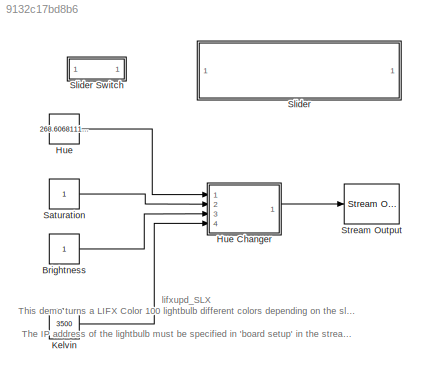
MODEL slx_9132c17bd8b6
KIND model
CONFIG AbsTol = auto
CONFIG EnableMultiTasking = on
CONFIG FixedStep = 0.001
CONFIG MaxStep = auto
CONFIG MinStep = auto
CONFIG RelTol = 1e-3
CONFIG SampleTimeConstraint = Unconstrained
CONFIG Solver = ode5
CONFIG SolverName = ode5
CONFIG StartTime = 0.0
CONFIG StopTime = inf
BLOCK [Constant] Brightness 
  OutDataTypeStr = double
  OutMax = [1]
BLOCK [Constant] Hue 
  OutDataTypeStr = double
  OutMax = [360]
  OutMin = [0]
  Value = 268.60681114551
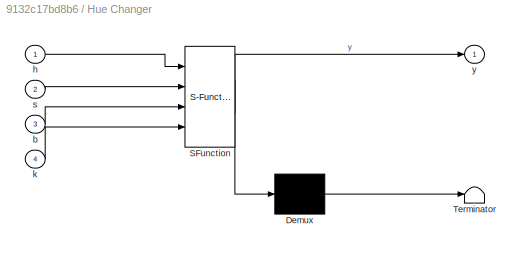
BLOCK [SubSystem] Hue Changer
  ErrorFcn = Stateflow.Translate.translate
  PermitHierarchicalResolution = ExplicitOnly
  Ports = [4, 1]
  RequestExecContextInheritance = off
  SFBlockType = MATLAB Function
  TreatAsAtomicUnit = on
  Variant = off
BLOCK [Demux] Hue Changer/ Demux 
  Outputs = 1
  Ports = [1, 1]
BLOCK [S-Function] Hue Changer/ SFunction 
  EnableBusSupport = on
  FunctionName = sf_sfun
  PortCounts = [4 2]
  Ports = [4, 2]
  SFcnIsStateOwnerBlock = off
  SFunctionDeploymentMode = off
  Tag = Stateflow S-Function lifxudp_SLX 2
BLOCK [Terminator] Hue Changer/ Terminator 
BLOCK [Inport] Hue Changer/b
  IconDisplay = Port number
  Port = 3
BLOCK [Inport] Hue Changer/h
  IconDisplay = Port number
BLOCK [Inport] Hue Changer/k
  IconDisplay = Port number
  Port = 4
BLOCK [Inport] Hue Changer/s
  IconDisplay = Port number
  Port = 2
BLOCK [Outport] Hue Changer/y
  IconDisplay = Port number
BLOCK [Constant] Kelvin
  OutDataTypeStr = double
  OutMax = [9000]
  OutMin = [2500]
  Value = 3500
BLOCK [Constant] Saturation
  OutDataTypeStr = double
BLOCK [SubSystem] Slider
  DialogController = hmiCreateDDGDialog
  IsWebBlock = on
  MaskHideContents = on
  Ports = []
  RequestExecContextInheritance = off
  Variant = off
BLOCK [SubSystem] Slider Switch
  DialogController = hmiCreateDDGDialog
  IsWebBlock = on
  MaskHideContents = on
  Ports = []
  RequestExecContextInheritance = off
  Variant = off
BLOCK [Reference] Stream Output  REF=sldrtlib/Stream Output
  AttributesFormatString = Standard Devices\nUDP Protocol [D457h]
  Ports = [1]
  SourceBlock = sldrtlib/Stream Output
  SourceType = Simulink Desktop Real-Time Stream Output
ANNOTATION (root): lifxupd_SLX This demo turns a LIFX Color 100 lightbulb different colors depending on the slider setting. The IP address of the lightbulb must be specified in 'board setup' in the stream output block.
LINE Brightness :1 -> Hue Changer:3
LINE Hue :1 -> Hue Changer:1
LINE Hue Changer:1 -> Stream Output:1
LINE Kelvin:1 -> Hue Changer:4
LINE Saturation:1 -> Hue Changer:2
CHART Hue Changer states=1 transitions=1
  STATE_LABEL 'eML_blk_kernel()'
  STATE_LABEL "SCRIPT:\nfunction y = fcn(h,s,b,k)\n%#codegen\n%%\ndec_code = [49;0;0;52;0;0;0;0;0;0;0;0;0;0;0;0;0;0;0;0;0;0;0;0;0;0;0;0;0;0;0;0;102;0;0;0;0;85;85;255;255;255;255;191;218;0;0;0;0];\n%%\n%%HUE \nhue = h/360 * 65535; %hue conversion formula, from degrees scale to LIFX scale\nhue = floor(hue);\nhue_hex = dec2hex(hue);\n\nif (length(hue_hex) == 1)\n    hue_arr = ['0',hue_hex(1)];\n    hue_arr = ['00',hue_arr(1:2)]...<+2435ch>"
